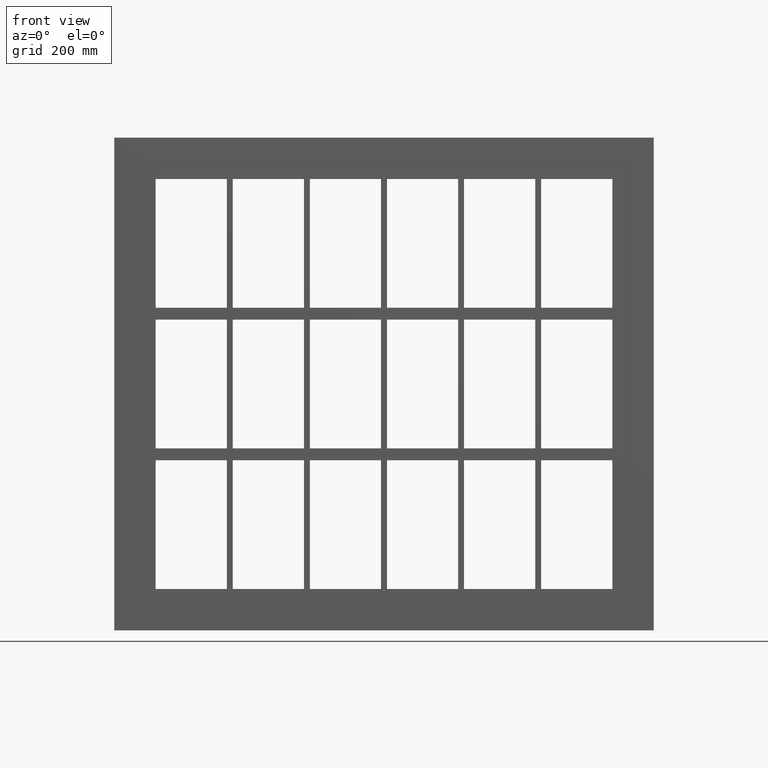
[diagram: clean part render]
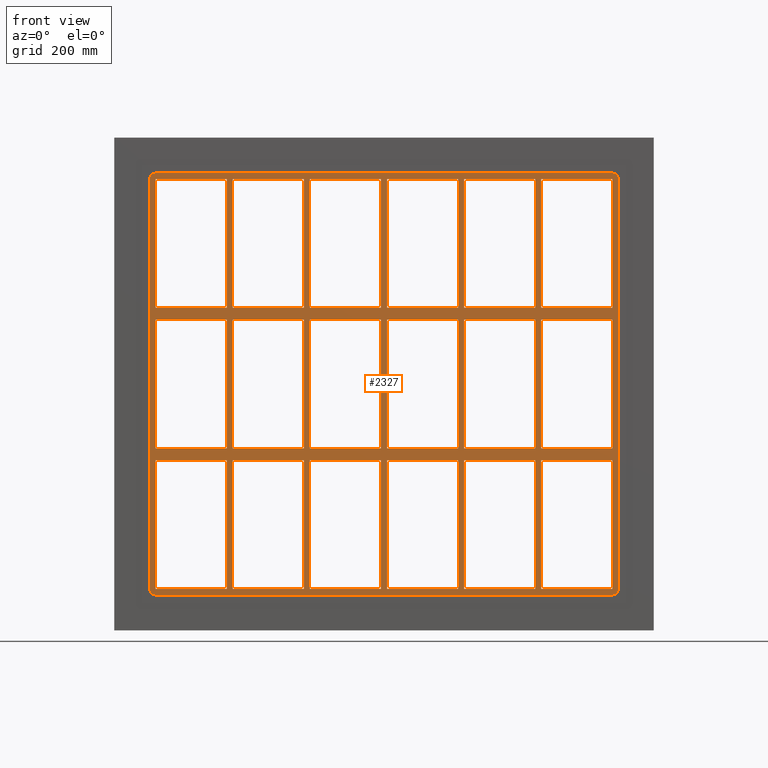
[diagram: same view with one face highlighted and labeled with its STEP entity id]
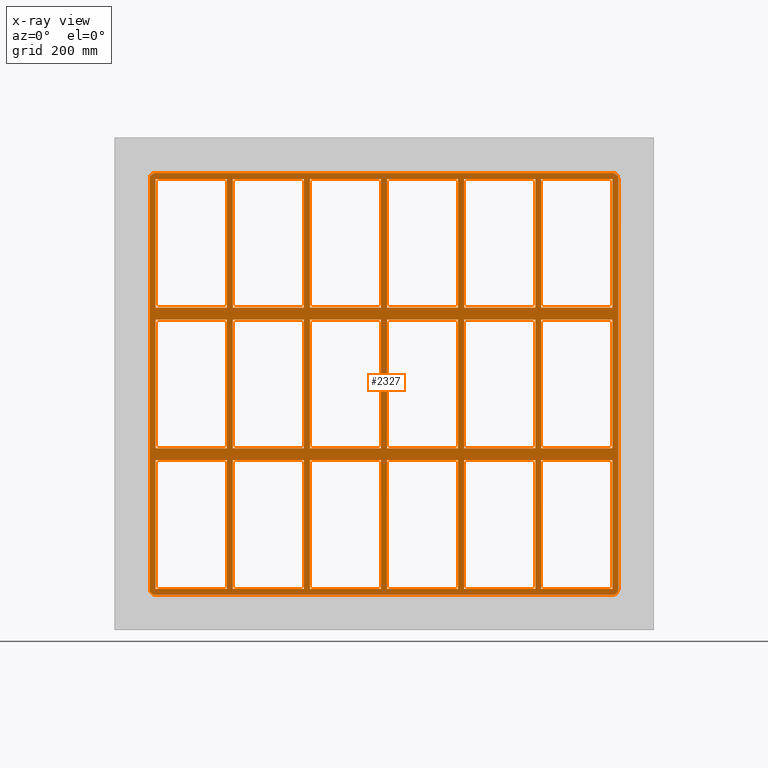
[diagram: x-ray of the same camera — body ghosted, the highlighted face saturated]
A machine part, front view. The second image highlights one B-rep face of the part: STEP entity #2327.
The next image is the same camera in x-ray: the body ghosted, the highlighted face saturated — about 0% of this face is hidden behind the body in this view.
In plain terms, the highlighted planar face has unit normal (0, 1, 0).
Its self-contained STEP definition (entity closure, byte-faithful):
#73=CARTESIAN_POINT('',(-266.00000000000142,-3.0,108.99999999999054));
#74=VERTEX_POINT('',#73);
#83=CARTESIAN_POINT('',(-386.49999999999972,-3.0,108.99999999999056));
#84=VERTEX_POINT('',#83);
#85=CARTESIAN_POINT('',(-266.00000000000136,-3.0,108.99999999999058));
#86=DIRECTION('',(-1.0,0.0,0.0));
#87=VECTOR('',#86,120.49999999999841);
#88=LINE('',#85,#87);
#89=EDGE_CURVE('',#74,#84,#88,.T.);
#113=CARTESIAN_POINT('',(-135.50000000000148,-3.0,108.99999999999059));
#114=VERTEX_POINT('',#113);
#123=CARTESIAN_POINT('',(-256.00000000000364,-3.0,108.99999999999056));
#124=VERTEX_POINT('',#123);
#125=CARTESIAN_POINT('',(-135.50000000000148,-3.0,108.99999999999058));
#126=DIRECTION('',(-1.0,0.0,0.0));
#127=VECTOR('',#126,120.50000000000216);
#128=LINE('',#125,#127);
#129=EDGE_CURVE('',#114,#124,#128,.T.);
#153=CARTESIAN_POINT('',(-5.000000000001421,-3.0,108.99999999999059));
#154=VERTEX_POINT('',#153);
#163=CARTESIAN_POINT('',(-125.50000000000367,-3.0,108.99999999999059));
#164=VERTEX_POINT('',#163);
#165=CARTESIAN_POINT('',(-5.000000000001421,-3.0,108.99999999999059));
#166=DIRECTION('',(-1.0,0.0,0.0));
#167=VECTOR('',#166,120.50000000000222);
#168=LINE('',#165,#167);
#169=EDGE_CURVE('',#154,#164,#168,.T.);
#193=CARTESIAN_POINT('',(125.49999999999866,-3.0,108.99999999999061));
#194=VERTEX_POINT('',#193);
#203=CARTESIAN_POINT('',(4.999999999996376,-3.0,108.99999999999061));
#204=VERTEX_POINT('',#203);
#205=CARTESIAN_POINT('',(125.49999999999864,-3.0,108.99999999999061));
#206=DIRECTION('',(-1.0,0.0,0.0));
#207=VECTOR('',#206,120.50000000000227);
#208=LINE('',#205,#207);
#209=EDGE_CURVE('',#194,#204,#208,.T.);
#235=CARTESIAN_POINT('',(265.99999999999642,-3.0,108.99999999999062));
#236=VERTEX_POINT('',#235);
#251=CARTESIAN_POINT('',(386.49999999999636,-3.0,108.99999999999062));
#252=VERTEX_POINT('',#251);
#259=CARTESIAN_POINT('',(386.49999999999636,-3.0,108.99999999999062));
#260=DIRECTION('',(-1.0,0.0,0.0));
#261=VECTOR('',#260,120.49999999999994);
#262=LINE('',#259,#261);
#263=EDGE_CURVE('',#252,#236,#262,.T.);
#273=CARTESIAN_POINT('',(255.99999999999866,-3.0,108.99999999999061));
#274=VERTEX_POINT('',#273);
#283=CARTESIAN_POINT('',(135.49999999999642,-3.0,108.99999999999061));
#284=VERTEX_POINT('',#283);
#285=CARTESIAN_POINT('',(255.99999999999866,-3.0,108.99999999999061));
#286=DIRECTION('',(-1.0,0.0,0.0));
#287=VECTOR('',#286,120.50000000000225);
#288=LINE('',#285,#287);
#289=EDGE_CURVE('',#274,#284,#288,.T.);
#315=CARTESIAN_POINT('',(-266.00000000000142,-3.0,128.99999999999991));
#316=VERTEX_POINT('',#315);
#331=CARTESIAN_POINT('',(-386.49999999999972,-3.0,128.99999999999994));
#332=VERTEX_POINT('',#331);
#339=CARTESIAN_POINT('',(-386.49999999999972,-3.0,128.99999999999994));
#340=DIRECTION('',(1.0,0.0,0.0));
#341=VECTOR('',#340,120.49999999999829);
#342=LINE('',#339,#341);
#343=EDGE_CURVE('',#332,#316,#342,.T.);
#353=CARTESIAN_POINT('',(265.99999999999648,-3.0,128.99999999999994));
#354=VERTEX_POINT('',#353);
#363=CARTESIAN_POINT('',(386.5,-3.0,128.99999999999994));
#364=VERTEX_POINT('',#363);
#365=CARTESIAN_POINT('',(265.99999999999642,-3.0,128.99999999999994));
#366=DIRECTION('',(1.0,0.0,0.0));
#367=VECTOR('',#366,120.50000000000352);
#368=LINE('',#365,#367);
#369=EDGE_CURVE('',#354,#364,#368,.T.);
#395=CARTESIAN_POINT('',(-135.50000000000139,-3.0,128.99999999999994));
#396=VERTEX_POINT('',#395);
#411=CARTESIAN_POINT('',(-256.00000000000364,-3.0,128.99999999999994));
#412=VERTEX_POINT('',#411);
#419=CARTESIAN_POINT('',(-256.00000000000364,-3.0,128.99999999999994));
#420=DIRECTION('',(1.0,0.0,0.0));
#421=VECTOR('',#420,120.50000000000222);
#422=LINE('',#419,#421);
#423=EDGE_CURVE('',#412,#396,#422,.T.);
#435=CARTESIAN_POINT('',(-5.000000000001421,-3.0,128.99999999999994));
#436=VERTEX_POINT('',#435);
#451=CARTESIAN_POINT('',(-125.50000000000364,-3.0,128.99999999999994));
#452=VERTEX_POINT('',#451);
#459=CARTESIAN_POINT('',(-125.50000000000364,-3.0,128.99999999999994));
#460=DIRECTION('',(1.0,0.0,0.0));
#461=VECTOR('',#460,120.50000000000222);
#462=LINE('',#459,#461);
#463=EDGE_CURVE('',#452,#436,#462,.T.);
#475=CARTESIAN_POINT('',(125.49999999999862,-3.0,128.99999999999994));
#476=VERTEX_POINT('',#475);
#491=CARTESIAN_POINT('',(4.999999999996376,-3.0,128.99999999999994));
#492=VERTEX_POINT('',#491);
#499=CARTESIAN_POINT('',(4.999999999996362,-3.0,128.99999999999994));
#500=DIRECTION('',(1.0,0.0,0.0));
#501=VECTOR('',#500,120.50000000000222);
#502=LINE('',#499,#501);
#503=EDGE_CURVE('',#492,#476,#502,.T.);
#515=CARTESIAN_POINT('',(255.99999999999875,-3.0,128.99999999999994));
#516=VERTEX_POINT('',#515);
#531=CARTESIAN_POINT('',(135.49999999999642,-3.0,128.99999999999994));
#532=VERTEX_POINT('',#531);
#539=CARTESIAN_POINT('',(135.49999999999642,-3.0,128.99999999999994));
#540=DIRECTION('',(1.0,0.0,0.0));
#541=VECTOR('',#540,120.50000000000227);
#542=LINE('',#539,#541);
#543=EDGE_CURVE('',#532,#516,#542,.T.);
#562=CARTESIAN_POINT('',(-386.50000000000006,-3.0,347.0));
#563=VERTEX_POINT('',#562);
#570=CARTESIAN_POINT('',(-386.50000000000006,-3.0,128.99999999999994));
#571=DIRECTION('',(0.0,0.0,1.0));
#572=VECTOR('',#571,218.00000000000006);
#573=LINE('',#570,#572);
#574=EDGE_CURVE('',#332,#563,#573,.T.);
#593=CARTESIAN_POINT('',(386.5,-3.0,-109.00000000000006));
#594=VERTEX_POINT('',#593);
#601=CARTESIAN_POINT('',(386.50000000000006,-3.0,108.99999999999061));
#602=DIRECTION('',(0.0,0.0,-1.0));
#603=VECTOR('',#602,217.99999999999068);
#604=LINE('',#601,#603);
#605=EDGE_CURVE('',#252,#594,#604,.T.);
#616=CARTESIAN_POINT('',(386.50000000000006,-3.0,347.0));
#617=VERTEX_POINT('',#616);
#618=CARTESIAN_POINT('',(386.50000000000006,-3.0,347.0));
#619=DIRECTION('',(0.0,0.0,-1.0));
#620=VECTOR('',#619,218.00000000000006);
#621=LINE('',#618,#620);
#622=EDGE_CURVE('',#617,#364,#621,.T.);
#647=CARTESIAN_POINT('',(255.99999999999864,-3.0,347.0));
#648=VERTEX_POINT('',#647);
#649=CARTESIAN_POINT('',(255.99999999999864,-3.0,128.99999999999994));
#650=DIRECTION('',(0.0,0.0,1.0));
#651=VECTOR('',#650,218.00000000000006);
#652=LINE('',#649,#651);
#653=EDGE_CURVE('',#516,#648,#652,.T.);
#686=CARTESIAN_POINT('',(265.99999999999642,-3.0,347.0));
#687=VERTEX_POINT('',#686);
#694=CARTESIAN_POINT('',(265.99999999999642,-3.0,347.0));
#695=DIRECTION('',(0.0,0.0,-1.0));
#696=VECTOR('',#695,218.00000000000009);
#697=LINE('',#694,#696);
#698=EDGE_CURVE('',#687,#354,#697,.T.);
#709=CARTESIAN_POINT('',(125.49999999999862,-3.0,347.0));
#710=VERTEX_POINT('',#709);
#711=CARTESIAN_POINT('',(125.49999999999865,-3.0,128.99999999999994));
#712=DIRECTION('',(0.0,0.0,1.0));
#713=VECTOR('',#712,218.00000000000006);
#714=LINE('',#711,#713);
#715=EDGE_CURVE('',#476,#710,#714,.T.);
#748=CARTESIAN_POINT('',(135.49999999999642,-3.0,347.0));
#749=VERTEX_POINT('',#748);
#756=CARTESIAN_POINT('',(135.49999999999642,-3.0,347.0));
#757=DIRECTION('',(0.0,0.0,-1.0));
#758=VECTOR('',#757,218.00000000000009);
#759=LINE('',#756,#758);
#760=EDGE_CURVE('',#749,#532,#759,.T.);
#771=CARTESIAN_POINT('',(-5.000000000001421,-3.0,347.0));
#772=VERTEX_POINT('',#771);
#773=CARTESIAN_POINT('',(-5.000000000001399,-3.0,128.99999999999994));
#774=DIRECTION('',(0.0,0.0,1.0));
#775=VECTOR('',#774,218.00000000000006);
#776=LINE('',#773,#775);
#777=EDGE_CURVE('',#436,#772,#776,.T.);
#810=CARTESIAN_POINT('',(4.999999999996376,-3.0,347.0));
#811=VERTEX_POINT('',#810);
#818=CARTESIAN_POINT('',(4.999999999996376,-3.0,347.0));
#819=DIRECTION('',(0.0,0.0,-1.0));
#820=VECTOR('',#819,218.00000000000009);
#821=LINE('',#818,#820);
#822=EDGE_CURVE('',#811,#492,#821,.T.);
#833=CARTESIAN_POINT('',(-135.50000000000142,-3.0,347.0));
#834=VERTEX_POINT('',#833);
#835=CARTESIAN_POINT('',(-135.50000000000142,-3.0,128.99999999999994));
#836=DIRECTION('',(0.0,0.0,1.0));
#837=VECTOR('',#836,218.00000000000006);
#838=LINE('',#835,#837);
#839=EDGE_CURVE('',#396,#834,#838,.T.);
#872=CARTESIAN_POINT('',(-125.50000000000364,-3.0,347.0));
#873=VERTEX_POINT('',#872);
#880=CARTESIAN_POINT('',(-125.50000000000364,-3.0,347.0));
#881=DIRECTION('',(0.0,0.0,-1.0));
#882=VECTOR('',#881,218.00000000000009);
#883=LINE('',#880,#882);
#884=EDGE_CURVE('',#873,#452,#883,.T.);
#895=CARTESIAN_POINT('',(-266.00000000000142,-3.0,347.0));
#896=VERTEX_POINT('',#895);
#897=CARTESIAN_POINT('',(-266.00000000000142,-3.0,128.99999999999994));
#898=DIRECTION('',(0.0,0.0,1.0));
#899=VECTOR('',#898,218.00000000000006);
#900=LINE('',#897,#899);
#901=EDGE_CURVE('',#316,#896,#900,.T.);
#934=CARTESIAN_POINT('',(-266.00000000000136,-3.0,-109.00000000000006));
#935=VERTEX_POINT('',#934);
#942=CARTESIAN_POINT('',(-266.00000000000136,-3.0,-109.00000000000003));
#943=DIRECTION('',(0.0,0.0,1.0));
#944=VECTOR('',#943,217.99999999999059);
#945=LINE('',#942,#944);
#946=EDGE_CURVE('',#935,#74,#945,.T.);
#965=CARTESIAN_POINT('',(-256.00000000000364,-3.0,347.0));
#966=VERTEX_POINT('',#965);
#973=CARTESIAN_POINT('',(-256.00000000000364,-3.0,347.0));
#974=DIRECTION('',(0.0,0.0,-1.0));
#975=VECTOR('',#974,218.00000000000009);
#976=LINE('',#973,#975);
#977=EDGE_CURVE('',#966,#412,#976,.T.);
#1471=CARTESIAN_POINT('',(255.99999999999866,-3.0,-109.00000000000006));
#1472=VERTEX_POINT('',#1471);
#1479=CARTESIAN_POINT('',(255.99999999999866,-3.0,-109.00000000000003));
#1480=DIRECTION('',(0.0,0.0,1.0));
#1481=VECTOR('',#1480,217.99999999999065);
#1482=LINE('',#1479,#1481);
#1483=EDGE_CURVE('',#1472,#274,#1482,.T.);
#1493=CARTESIAN_POINT('',(255.99999999999866,-3.0,-129.00000000000938));
#1494=VERTEX_POINT('',#1493);
#1502=CARTESIAN_POINT('',(255.99999999999869,-3.0,-347.0));
#1503=VERTEX_POINT('',#1502);
#1510=CARTESIAN_POINT('',(255.99999999999869,-3.0,-347.0));
#1511=DIRECTION('',(0.0,0.0,1.0));
#1512=VECTOR('',#1511,217.99999999999068);
#1513=LINE('',#1510,#1512);
#1514=EDGE_CURVE('',#1503,#1494,#1513,.T.);
#1525=CARTESIAN_POINT('',(265.99999999999642,-3.0,-109.00000000000006));
#1526=VERTEX_POINT('',#1525);
#1527=CARTESIAN_POINT('',(265.99999999999642,-3.0,108.99999999999056));
#1528=DIRECTION('',(0.0,0.0,-1.0));
#1529=VECTOR('',#1528,217.99999999999068);
#1530=LINE('',#1527,#1529);
#1531=EDGE_CURVE('',#236,#1526,#1530,.T.);
#1548=CARTESIAN_POINT('',(265.99999999999642,-3.0,-129.00000000000938));
#1549=VERTEX_POINT('',#1548);
#1556=CARTESIAN_POINT('',(265.99999999999642,-3.0,-346.99999999998408));
#1557=VERTEX_POINT('',#1556);
#1558=CARTESIAN_POINT('',(265.99999999999642,-3.0,-129.00000000000938));
#1559=DIRECTION('',(0.0,0.0,-1.0));
#1560=VECTOR('',#1559,217.9999999999747);
#1561=LINE('',#1558,#1560);
#1562=EDGE_CURVE('',#1549,#1557,#1561,.T.);
#1581=CARTESIAN_POINT('',(125.49999999999868,-3.0,-109.00000000000006));
#1582=VERTEX_POINT('',#1581);
#1589=CARTESIAN_POINT('',(125.49999999999866,-3.0,-109.00000000000003));
#1590=DIRECTION('',(0.0,0.0,1.0));
#1591=VECTOR('',#1590,217.99999999999065);
#1592=LINE('',#1589,#1591);
#1593=EDGE_CURVE('',#1582,#194,#1592,.T.);
#1603=CARTESIAN_POINT('',(125.49999999999868,-3.0,-129.00000000000941));
#1604=VERTEX_POINT('',#1603);
#1612=CARTESIAN_POINT('',(125.49999999999869,-3.0,-347.0));
#1613=VERTEX_POINT('',#1612);
#1620=CARTESIAN_POINT('',(125.49999999999869,-3.0,-347.0));
#1621=DIRECTION('',(0.0,0.0,1.0));
#1622=VECTOR('',#1621,217.99999999999062);
#1623=LINE('',#1620,#1622);
#1624=EDGE_CURVE('',#1613,#1604,#1623,.T.);
#1635=CARTESIAN_POINT('',(135.49999999999642,-3.0,-109.00000000000006));
#1636=VERTEX_POINT('',#1635);
#1637=CARTESIAN_POINT('',(135.49999999999642,-3.0,108.99999999999056));
#1638=DIRECTION('',(0.0,0.0,-1.0));
#1639=VECTOR('',#1638,217.99999999999068);
#1640=LINE('',#1637,#1639);
#1641=EDGE_CURVE('',#284,#1636,#1640,.T.);
#1658=CARTESIAN_POINT('',(135.49999999999642,-3.0,-129.00000000000938));
#1659=VERTEX_POINT('',#1658);
#1666=CARTESIAN_POINT('',(135.49999999999642,-3.0,-346.99999999998408));
#1667=VERTEX_POINT('',#1666);
#1668=CARTESIAN_POINT('',(135.49999999999642,-3.0,-129.00000000000938));
#1669=DIRECTION('',(0.0,0.0,-1.0));
#1670=VECTOR('',#1669,217.9999999999747);
#1671=LINE('',#1668,#1670);
#1672=EDGE_CURVE('',#1659,#1667,#1671,.T.);
#1691=CARTESIAN_POINT('',(-5.000000000001375,-3.0,-109.00000000000006));
#1692=VERTEX_POINT('',#1691);
#1699=CARTESIAN_POINT('',(-5.000000000001374,-3.0,-109.00000000000003));
#1700=DIRECTION('',(0.0,0.0,1.0));
#1701=VECTOR('',#1700,217.99999999999065);
#1702=LINE('',#1699,#1701);
#1703=EDGE_CURVE('',#1692,#154,#1702,.T.);
#1713=CARTESIAN_POINT('',(-5.000000000001372,-3.0,-129.00000000000941));
#1714=VERTEX_POINT('',#1713);
#1722=CARTESIAN_POINT('',(-5.00000000000135,-3.0,-347.0));
#1723=VERTEX_POINT('',#1722);
#1730=CARTESIAN_POINT('',(-5.00000000000135,-3.0,-347.0));
#1731=DIRECTION('',(0.0,0.0,1.0));
#1732=VECTOR('',#1731,217.99999999999062);
#1733=LINE('',#1730,#1732);
#1734=EDGE_CURVE('',#1723,#1714,#1733,.T.);
#1745=CARTESIAN_POINT('',(4.999999999996376,-3.0,-109.00000000000006));
#1746=VERTEX_POINT('',#1745);
#1747=CARTESIAN_POINT('',(4.999999999996376,-3.0,108.99999999999056));
#1748=DIRECTION('',(0.0,0.0,-1.0));
#1749=VECTOR('',#1748,217.99999999999068);
#1750=LINE('',#1747,#1749);
#1751=EDGE_CURVE('',#204,#1746,#1750,.T.);
#1768=CARTESIAN_POINT('',(4.999999999996376,-3.0,-129.00000000000938));
#1769=VERTEX_POINT('',#1768);
#1776=CARTESIAN_POINT('',(4.999999999996376,-3.0,-346.99999999998408));
#1777=VERTEX_POINT('',#1776);
#1778=CARTESIAN_POINT('',(4.999999999996376,-3.0,-129.00000000000938));
#1779=DIRECTION('',(0.0,0.0,-1.0));
#1780=VECTOR('',#1779,217.9999999999747);
#1781=LINE('',#1778,#1780);
#1782=EDGE_CURVE('',#1769,#1777,#1781,.T.);
#1801=CARTESIAN_POINT('',(-135.50000000000136,-3.0,-109.00000000000006));
#1802=VERTEX_POINT('',#1801);
#1809=CARTESIAN_POINT('',(-135.50000000000139,-3.0,-109.00000000000003));
#1810=DIRECTION('',(0.0,0.0,1.0));
#1811=VECTOR('',#1810,217.99999999999065);
#1812=LINE('',#1809,#1811);
#1813=EDGE_CURVE('',#1802,#114,#1812,.T.);
#1823=CARTESIAN_POINT('',(-135.50000000000136,-3.0,-129.00000000000941));
#1824=VERTEX_POINT('',#1823);
#1832=CARTESIAN_POINT('',(-135.50000000000136,-3.0,-347.0));
#1833=VERTEX_POINT('',#1832);
#1840=CARTESIAN_POINT('',(-135.50000000000136,-3.0,-347.0));
#1841=DIRECTION('',(0.0,0.0,1.0));
#1842=VECTOR('',#1841,217.99999999999062);
#1843=LINE('',#1840,#1842);
#1844=EDGE_CURVE('',#1833,#1824,#1843,.T.);
#1855=CARTESIAN_POINT('',(-125.50000000000364,-3.0,-109.00000000000006));
#1856=VERTEX_POINT('',#1855);
#1857=CARTESIAN_POINT('',(-125.50000000000364,-3.0,108.99999999999056));
#1858=DIRECTION('',(0.0,0.0,-1.0));
#1859=VECTOR('',#1858,217.99999999999068);
#1860=LINE('',#1857,#1859);
#1861=EDGE_CURVE('',#164,#1856,#1860,.T.);
#1878=CARTESIAN_POINT('',(-125.50000000000364,-3.0,-129.00000000000938));
#1879=VERTEX_POINT('',#1878);
#1886=CARTESIAN_POINT('',(-125.50000000000364,-3.0,-346.99999999998408));
#1887=VERTEX_POINT('',#1886);
#1888=CARTESIAN_POINT('',(-125.50000000000364,-3.0,-129.00000000000938));
#1889=DIRECTION('',(0.0,0.0,-1.0));
#1890=VECTOR('',#1889,217.9999999999747);
#1891=LINE('',#1888,#1890);
#1892=EDGE_CURVE('',#1879,#1887,#1891,.T.);
#1911=CARTESIAN_POINT('',(-256.00000000000364,-3.0,-346.99999999998408));
#1912=VERTEX_POINT('',#1911);
#1919=CARTESIAN_POINT('',(-135.50000000000139,-3.0,-347.0));
#1920=DIRECTION('',(-1.0,0.0,0.0));
#1921=VECTOR('',#1920,120.50000000000225);
#1922=LINE('',#1919,#1921);
#1923=EDGE_CURVE('',#1833,#1912,#1922,.T.);
#1936=CARTESIAN_POINT('',(-5.000000000001336,-3.0,-347.0));
#1937=DIRECTION('',(-1.0,0.0,0.0));
#1938=VECTOR('',#1937,120.50000000000227);
#1939=LINE('',#1936,#1938);
#1940=EDGE_CURVE('',#1723,#1887,#1939,.T.);
#1953=CARTESIAN_POINT('',(125.49999999999869,-3.0,-347.0));
#1954=DIRECTION('',(-1.0,0.0,0.0));
#1955=VECTOR('',#1954,120.5000000000023);
#1956=LINE('',#1953,#1955);
#1957=EDGE_CURVE('',#1613,#1777,#1956,.T.);
#1970=CARTESIAN_POINT('',(255.99999999999869,-3.0,-347.0));
#1971=DIRECTION('',(-1.0,0.0,0.0));
#1972=VECTOR('',#1971,120.50000000000227);
#1973=LINE('',#1970,#1972);
#1974=EDGE_CURVE('',#1503,#1667,#1973,.T.);
#1985=CARTESIAN_POINT('',(386.50000000000006,-3.0,-347.0));
#1986=VERTEX_POINT('',#1985);
#1987=CARTESIAN_POINT('',(386.50000000000006,-3.0,-347.0));
#1988=DIRECTION('',(-1.0,0.0,0.0));
#1989=VECTOR('',#1988,120.50000000000364);
#1990=LINE('',#1987,#1989);
#1991=EDGE_CURVE('',#1986,#1557,#1990,.T.);
#2003=CARTESIAN_POINT('',(0.0,-3.0,0.0));
#2004=DIRECTION('',(0.0,1.0,0.0));
#2005=DIRECTION('',(0.0,0.0,1.0));
#2006=AXIS2_PLACEMENT_3D('',#2003,#2004,#2005);
#2007=PLANE('',#2006);
#2008=CARTESIAN_POINT('',(396.50000000000006,-3.0,-347.0));
#2009=VERTEX_POINT('',#2008);
#2010=CARTESIAN_POINT('',(386.50000000000006,-3.0,-357.0));
#2011=VERTEX_POINT('',#2010);
#2012=CARTESIAN_POINT('',(386.50000000000006,-3.0,-347.0));
#2013=DIRECTION('',(0.0,1.0,0.0));
#2014=DIRECTION('',(0.707106781186547,0.0,-0.707106781186547));
#2015=AXIS2_PLACEMENT_3D('',#2012,#2013,#2014);
#2016=CIRCLE('',#2015,9.999999999999998);
#2017=EDGE_CURVE('',#2009,#2011,#2016,.T.);
#2018=ORIENTED_EDGE('',*,*,#2017,.F.);
#2019=CARTESIAN_POINT('',(396.50000000000006,-3.0,347.0));
#2020=VERTEX_POINT('',#2019);
#2021=CARTESIAN_POINT('',(396.50000000000006,-3.0,-347.0));
#2022=DIRECTION('',(0.0,0.0,1.0));
#2023=VECTOR('',#2022,694.0);
#2024=LINE('',#2021,#2023);
#2025=EDGE_CURVE('',#2009,#2020,#2024,.T.);
#2026=ORIENTED_EDGE('',*,*,#2025,.T.);
#2027=CARTESIAN_POINT('',(386.50000000000006,-3.0,357.0));
#2028=VERTEX_POINT('',#2027);
#2029=CARTESIAN_POINT('',(386.50000000000006,-3.0,347.0));
#2030=DIRECTION('',(0.0,1.0,0.0));
#2031=DIRECTION('',(0.707106781186547,0.0,0.707106781186547));
#2032=AXIS2_PLACEMENT_3D('',#2029,#2030,#2031);
#2033=CIRCLE('',#2032,9.999999999999998);
#2034=EDGE_CURVE('',#2028,#2020,#2033,.T.);
#2035=ORIENTED_EDGE('',*,*,#2034,.F.);
#2036=CARTESIAN_POINT('',(-386.50000000000006,-3.0,357.0));
#2037=VERTEX_POINT('',#2036);
#2038=CARTESIAN_POINT('',(386.50000000000006,-3.0,357.0));
#2039=DIRECTION('',(-1.0,0.0,0.0));
#2040=VECTOR('',#2039,773.00000000000011);
#2041=LINE('',#2038,#2040);
#2042=EDGE_CURVE('',#2028,#2037,#2041,.T.);
#2043=ORIENTED_EDGE('',*,*,#2042,.T.);
#2044=CARTESIAN_POINT('',(-396.50000000000006,-3.0,347.0));
#2045=VERTEX_POINT('',#2044);
#2046=CARTESIAN_POINT('',(-386.50000000000006,-3.0,347.0));
#2047=DIRECTION('',(0.0,1.0,0.0));
#2048=DIRECTION('',(-0.707106781186547,0.0,0.707106781186547));
#2049=AXIS2_PLACEMENT_3D('',#2046,#2047,#2048);
#2050=CIRCLE('',#2049,9.999999999999998);
#2051=EDGE_CURVE('',#2045,#2037,#2050,.T.);
#2052=ORIENTED_EDGE('',*,*,#2051,.F.);
#2053=CARTESIAN_POINT('',(-396.50000000000006,-3.0,-347.0));
#2054=VERTEX_POINT('',#2053);
#2055=CARTESIAN_POINT('',(-396.50000000000006,-3.0,347.0));
#2056=DIRECTION('',(0.0,0.0,-1.0));
#2057=VECTOR('',#2056,694.0);
#2058=LINE('',#2055,#2057);
#2059=EDGE_CURVE('',#2045,#2054,#2058,.T.);
#2060=ORIENTED_EDGE('',*,*,#2059,.T.);
#2061=CARTESIAN_POINT('',(-386.50000000000006,-3.0,-357.0));
#2062=VERTEX_POINT('',#2061);
#2063=CARTESIAN_POINT('',(-386.50000000000006,-3.0,-347.0));
#2064=DIRECTION('',(0.0,1.0,0.0));
#2065=DIRECTION('',(-0.707106781186547,0.0,-0.707106781186547));
#2066=AXIS2_PLACEMENT_3D('',#2063,#2064,#2065);
#2067=CIRCLE('',#2066,9.999999999999998);
#2068=EDGE_CURVE('',#2062,#2054,#2067,.T.);
#2069=ORIENTED_EDGE('',*,*,#2068,.F.);
#2070=CARTESIAN_POINT('',(-386.50000000000006,-3.0,-357.0));
#2071=DIRECTION('',(1.0,0.0,0.0));
#2072=VECTOR('',#2071,773.00000000000011);
#2073=LINE('',#2070,#2072);
#2074=EDGE_CURVE('',#2062,#2011,#2073,.T.);
#2075=ORIENTED_EDGE('',*,*,#2074,.T.);
#2076=EDGE_LOOP('',(#2018,#2026,#2035,#2043,#2052,#2060,#2069,#2075));
#2077=FACE_OUTER_BOUND('',#2076,.T.);
#2078=ORIENTED_EDGE('',*,*,#574,.T.);
#2079=CARTESIAN_POINT('',(-386.50000000000006,-3.0,347.0));
#2080=DIRECTION('',(1.0,0.0,0.0));
#2081=VECTOR('',#2080,120.49999999999864);
#2082=LINE('',#2079,#2081);
#2083=EDGE_CURVE('',#563,#896,#2082,.T.);
#2084=ORIENTED_EDGE('',*,*,#2083,.T.);
#2085=ORIENTED_EDGE('',*,*,#901,.F.);
#2086=ORIENTED_EDGE('',*,*,#343,.F.);
#2087=EDGE_LOOP('',(#2078,#2084,#2085,#2086));
#2088=FACE_BOUND('',#2087,.T.);
#2089=ORIENTED_EDGE('',*,*,#605,.T.);
#2090=CARTESIAN_POINT('',(265.99999999999642,-3.0,-109.00000000000006));
#2091=DIRECTION('',(1.0,0.0,0.0));
#2092=VECTOR('',#2091,120.50000000000352);
#2093=LINE('',#2090,#2092);
#2094=EDGE_CURVE('',#1526,#594,#2093,.T.);
#2095=ORIENTED_EDGE('',*,*,#2094,.F.);
#2096=ORIENTED_EDGE('',*,*,#1531,.F.);
#2097=ORIENTED_EDGE('',*,*,#263,.F.);
#2098=EDGE_LOOP('',(#2089,#2095,#2096,#2097));
#2099=FACE_BOUND('',#2098,.T.);
#2100=ORIENTED_EDGE('',*,*,#1483,.F.);
#2101=CARTESIAN_POINT('',(135.49999999999642,-3.0,-109.00000000000006));
#2102=DIRECTION('',(1.0,0.0,0.0));
#2103=VECTOR('',#2102,120.50000000000216);
#2104=LINE('',#2101,#2103);
#2105=EDGE_CURVE('',#1636,#1472,#2104,.T.);
#2106=ORIENTED_EDGE('',*,*,#2105,.F.);
#2107=ORIENTED_EDGE('',*,*,#1641,.F.);
#2108=ORIENTED_EDGE('',*,*,#289,.F.);
#2109=EDGE_LOOP('',(#2100,#2106,#2107,#2108));
#2110=FACE_BOUND('',#2109,.T.);
#2111=ORIENTED_EDGE('',*,*,#1593,.F.);
#2112=CARTESIAN_POINT('',(4.999999999996362,-3.0,-109.00000000000006));
#2113=DIRECTION('',(1.0,0.0,0.0));
#2114=VECTOR('',#2113,120.50000000000233);
#2115=LINE('',#2112,#2114);
#2116=EDGE_CURVE('',#1746,#1582,#2115,.T.);
#2117=ORIENTED_EDGE('',*,*,#2116,.F.);
#2118=ORIENTED_EDGE('',*,*,#1751,.F.);
#2119=ORIENTED_EDGE('',*,*,#209,.F.);
#2120=EDGE_LOOP('',(#2111,#2117,#2118,#2119));
#2121=FACE_BOUND('',#2120,.T.);
#2122=ORIENTED_EDGE('',*,*,#1703,.F.);
#2123=CARTESIAN_POINT('',(-125.50000000000364,-3.0,-109.00000000000006));
#2124=DIRECTION('',(1.0,0.0,0.0));
#2125=VECTOR('',#2124,120.50000000000227);
#2126=LINE('',#2123,#2125);
#2127=EDGE_CURVE('',#1856,#1692,#2126,.T.);
#2128=ORIENTED_EDGE('',*,*,#2127,.F.);
#2129=ORIENTED_EDGE('',*,*,#1861,.F.);
#2130=ORIENTED_EDGE('',*,*,#169,.F.);
#2131=EDGE_LOOP('',(#2122,#2128,#2129,#2130));
#2132=FACE_BOUND('',#2131,.T.);
#2133=ORIENTED_EDGE('',*,*,#1813,.F.);
#2134=CARTESIAN_POINT('',(-256.00000000000364,-3.0,-109.00000000000006));
#2135=VERTEX_POINT('',#2134);
#2136=CARTESIAN_POINT('',(-256.00000000000364,-3.0,-109.00000000000006));
#2137=DIRECTION('',(1.0,0.0,0.0));
#2138=VECTOR('',#2137,120.50000000000222);
#2139=LINE('',#2136,#2138);
#2140=EDGE_CURVE('',#2135,#1802,#2139,.T.);
#2141=ORIENTED_EDGE('',*,*,#2140,.F.);
#2142=CARTESIAN_POINT('',(-256.00000000000364,-3.0,108.99999999999054));
#2143=DIRECTION('',(0.0,0.0,-1.0));
#2144=VECTOR('',#2143,217.99999999999065);
#2145=LINE('',#2142,#2144);
#2146=EDGE_CURVE('',#124,#2135,#2145,.T.);
#2147=ORIENTED_EDGE('',*,*,#2146,.F.);
#2148=ORIENTED_EDGE('',*,*,#129,.F.);
#2149=EDGE_LOOP('',(#2133,#2141,#2147,#2148));
#2150=FACE_BOUND('',#2149,.T.);
#2151=ORIENTED_EDGE('',*,*,#543,.F.);
#2152=ORIENTED_EDGE('',*,*,#760,.F.);
#2153=CARTESIAN_POINT('',(135.49999999999645,-3.0,347.0));
#2154=DIRECTION('',(1.0,0.0,0.0));
#2155=VECTOR('',#2154,120.50000000000222);
#2156=LINE('',#2153,#2155);
#2157=EDGE_CURVE('',#749,#648,#2156,.T.);
#2158=ORIENTED_EDGE('',*,*,#2157,.T.);
#2159=ORIENTED_EDGE('',*,*,#653,.F.);
#2160=EDGE_LOOP('',(#2151,#2152,#2158,#2159));
#2161=FACE_BOUND('',#2160,.T.);
#2162=ORIENTED_EDGE('',*,*,#503,.F.);
#2163=ORIENTED_EDGE('',*,*,#822,.F.);
#2164=CARTESIAN_POINT('',(4.99999999999639,-3.0,347.0));
#2165=DIRECTION('',(1.0,0.0,0.0));
#2166=VECTOR('',#2165,120.50000000000222);
#2167=LINE('',#2164,#2166);
#2168=EDGE_CURVE('',#811,#710,#2167,.T.);
#2169=ORIENTED_EDGE('',*,*,#2168,.T.);
#2170=ORIENTED_EDGE('',*,*,#715,.F.);
#2171=EDGE_LOOP('',(#2162,#2163,#2169,#2170));
#2172=FACE_BOUND('',#2171,.T.);
#2173=ORIENTED_EDGE('',*,*,#463,.F.);
#2174=ORIENTED_EDGE('',*,*,#884,.F.);
#2175=CARTESIAN_POINT('',(-125.50000000000364,-3.0,347.0));
#2176=DIRECTION('',(1.0,0.0,0.0));
#2177=VECTOR('',#2176,120.50000000000222);
#2178=LINE('',#2175,#2177);
#2179=EDGE_CURVE('',#873,#772,#2178,.T.);
#2180=ORIENTED_EDGE('',*,*,#2179,.T.);
#2181=ORIENTED_EDGE('',*,*,#777,.F.);
#2182=EDGE_LOOP('',(#2173,#2174,#2180,#2181));
#2183=FACE_BOUND('',#2182,.T.);
#2184=ORIENTED_EDGE('',*,*,#423,.F.);
#2185=ORIENTED_EDGE('',*,*,#977,.F.);
#2186=CARTESIAN_POINT('',(-256.00000000000364,-3.0,347.0));
#2187=DIRECTION('',(1.0,0.0,0.0));
#2188=VECTOR('',#2187,120.50000000000222);
#2189=LINE('',#2186,#2188);
#2190=EDGE_CURVE('',#966,#834,#2189,.T.);
#2191=ORIENTED_EDGE('',*,*,#2190,.T.);
#2192=ORIENTED_EDGE('',*,*,#839,.F.);
#2193=EDGE_LOOP('',(#2184,#2185,#2191,#2192));
#2194=FACE_BOUND('',#2193,.T.);
#2195=ORIENTED_EDGE('',*,*,#89,.F.);
#2196=ORIENTED_EDGE('',*,*,#946,.F.);
#2197=CARTESIAN_POINT('',(-386.49999999999972,-3.0,-109.00000000000006));
#2198=VERTEX_POINT('',#2197);
#2199=CARTESIAN_POINT('',(-386.49999999999972,-3.0,-109.00000000000006));
#2200=DIRECTION('',(1.0,0.0,0.0));
#2201=VECTOR('',#2200,120.49999999999835);
#2202=LINE('',#2199,#2201);
#2203=EDGE_CURVE('',#2198,#935,#2202,.T.);
#2204=ORIENTED_EDGE('',*,*,#2203,.F.);
#2205=CARTESIAN_POINT('',(-386.50000000000006,-3.0,-109.00000000000004));
#2206=DIRECTION('',(0.0,0.0,1.0));
#2207=VECTOR('',#2206,217.99999999999062);
#2208=LINE('',#2205,#2207);
#2209=EDGE_CURVE('',#2198,#84,#2208,.T.);
#2210=ORIENTED_EDGE('',*,*,#2209,.T.);
#2211=EDGE_LOOP('',(#2195,#2196,#2204,#2210));
#2212=FACE_BOUND('',#2211,.T.);
#2213=ORIENTED_EDGE('',*,*,#369,.F.);
#2214=ORIENTED_EDGE('',*,*,#698,.F.);
#2215=CARTESIAN_POINT('',(265.99999999999636,-3.0,347.0));
#2216=DIRECTION('',(1.0,0.0,0.0));
#2217=VECTOR('',#2216,120.50000000000375);
#2218=LINE('',#2215,#2217);
#2219=EDGE_CURVE('',#687,#617,#2218,.T.);
#2220=ORIENTED_EDGE('',*,*,#2219,.T.);
#2221=ORIENTED_EDGE('',*,*,#622,.T.);
#2222=EDGE_LOOP('',(#2213,#2214,#2220,#2221));
#2223=FACE_BOUND('',#2222,.T.);
#2224=ORIENTED_EDGE('',*,*,#1974,.T.);
#2225=ORIENTED_EDGE('',*,*,#1672,.F.);
#2226=CARTESIAN_POINT('',(255.99999999999866,-3.0,-129.00000000000938));
#2227=DIRECTION('',(-1.0,0.0,0.0));
#2228=VECTOR('',#2227,120.50000000000225);
#2229=LINE('',#2226,#2228);
#2230=EDGE_CURVE('',#1494,#1659,#2229,.T.);
#2231=ORIENTED_EDGE('',*,*,#2230,.F.);
#2232=ORIENTED_EDGE('',*,*,#1514,.F.);
#2233=EDGE_LOOP('',(#2224,#2225,#2231,#2232));
#2234=FACE_BOUND('',#2233,.T.);
#2235=ORIENTED_EDGE('',*,*,#1957,.T.);
#2236=ORIENTED_EDGE('',*,*,#1782,.F.);
#2237=CARTESIAN_POINT('',(125.49999999999869,-3.0,-129.00000000000941));
#2238=DIRECTION('',(-1.0,0.0,0.0));
#2239=VECTOR('',#2238,120.50000000000233);
#2240=LINE('',#2237,#2239);
#2241=EDGE_CURVE('',#1604,#1769,#2240,.T.);
#2242=ORIENTED_EDGE('',*,*,#2241,.F.);
#2243=ORIENTED_EDGE('',*,*,#1624,.F.);
#2244=EDGE_LOOP('',(#2235,#2236,#2242,#2243));
#2245=FACE_BOUND('',#2244,.T.);
#2246=ORIENTED_EDGE('',*,*,#1940,.T.);
#2247=ORIENTED_EDGE('',*,*,#1892,.F.);
#2248=CARTESIAN_POINT('',(-5.000000000001364,-3.0,-129.00000000000941));
#2249=DIRECTION('',(-1.0,0.0,0.0));
#2250=VECTOR('',#2249,120.50000000000227);
#2251=LINE('',#2248,#2250);
#2252=EDGE_CURVE('',#1714,#1879,#2251,.T.);
#2253=ORIENTED_EDGE('',*,*,#2252,.F.);
#2254=ORIENTED_EDGE('',*,*,#1734,.F.);
#2255=EDGE_LOOP('',(#2246,#2247,#2253,#2254));
#2256=FACE_BOUND('',#2255,.T.);
#2257=ORIENTED_EDGE('',*,*,#1923,.T.);
#2258=CARTESIAN_POINT('',(-256.00000000000364,-3.0,-129.00000000000941));
#2259=VERTEX_POINT('',#2258);
#2260=CARTESIAN_POINT('',(-256.00000000000364,-3.0,-129.00000000000944));
#2261=DIRECTION('',(0.0,0.0,-1.0));
#2262=VECTOR('',#2261,217.99999999997465);
#2263=LINE('',#2260,#2262);
#2264=EDGE_CURVE('',#2259,#1912,#2263,.T.);
#2265=ORIENTED_EDGE('',*,*,#2264,.F.);
#2266=CARTESIAN_POINT('',(-135.50000000000136,-3.0,-129.00000000000941));
#2267=DIRECTION('',(-1.0,0.0,0.0));
#2268=VECTOR('',#2267,120.50000000000227);
#2269=LINE('',#2266,#2268);
#2270=EDGE_CURVE('',#1824,#2259,#2269,.T.);
#2271=ORIENTED_EDGE('',*,*,#2270,.F.);
#2272=ORIENTED_EDGE('',*,*,#1844,.F.);
#2273=EDGE_LOOP('',(#2257,#2265,#2271,#2272));
#2274=FACE_BOUND('',#2273,.T.);
#2275=ORIENTED_EDGE('',*,*,#1562,.F.);
#2276=CARTESIAN_POINT('',(386.49999999999636,-3.0,-129.00000000000938));
#2277=VERTEX_POINT('',#2276);
#2278=CARTESIAN_POINT('',(386.49999999999636,-3.0,-129.00000000000938));
#2279=DIRECTION('',(-1.0,0.0,0.0));
#2280=VECTOR('',#2279,120.49999999999994);
#2281=LINE('',#2278,#2280);
#2282=EDGE_CURVE('',#2277,#1549,#2281,.T.);
#2283=ORIENTED_EDGE('',*,*,#2282,.F.);
#2284=CARTESIAN_POINT('',(386.50000000000006,-3.0,-129.00000000000938));
#2285=DIRECTION('',(0.0,0.0,-1.0));
#2286=VECTOR('',#2285,217.99999999999062);
#2287=LINE('',#2284,#2286);
#2288=EDGE_CURVE('',#2277,#1986,#2287,.T.);
#2289=ORIENTED_EDGE('',*,*,#2288,.T.);
#2290=ORIENTED_EDGE('',*,*,#1991,.T.);
#2291=EDGE_LOOP('',(#2275,#2283,#2289,#2290));
#2292=FACE_BOUND('',#2291,.T.);
#2293=CARTESIAN_POINT('',(-266.00000000000136,-3.0,-129.00000000000944));
#2294=VERTEX_POINT('',#2293);
#2295=CARTESIAN_POINT('',(-386.49999999999972,-3.0,-129.00000000000944));
#2296=VERTEX_POINT('',#2295);
#2297=CARTESIAN_POINT('',(-266.00000000000136,-3.0,-129.00000000000944));
#2298=DIRECTION('',(-1.0,0.0,0.0));
#2299=VECTOR('',#2298,120.49999999999841);
#2300=LINE('',#2297,#2299);
#2301=EDGE_CURVE('',#2294,#2296,#2300,.T.);
#2302=ORIENTED_EDGE('',*,*,#2301,.F.);
#2303=CARTESIAN_POINT('',(-266.00000000000136,-3.0,-347.0));
#2304=VERTEX_POINT('',#2303);
#2305=CARTESIAN_POINT('',(-266.00000000000136,-3.0,-347.0));
#2306=DIRECTION('',(0.0,0.0,1.0));
#2307=VECTOR('',#2306,217.99999999999059);
#2308=LINE('',#2305,#2307);
#2309=EDGE_CURVE('',#2304,#2294,#2308,.T.);
#2310=ORIENTED_EDGE('',*,*,#2309,.F.);
#2311=CARTESIAN_POINT('',(-386.50000000000006,-3.0,-347.0));
#2312=VERTEX_POINT('',#2311);
#2313=CARTESIAN_POINT('',(-266.00000000000136,-3.0,-347.0));
#2314=DIRECTION('',(-1.0,0.0,0.0));
#2315=VECTOR('',#2314,120.49999999999875);
#2316=LINE('',#2313,#2315);
#2317=EDGE_CURVE('',#2304,#2312,#2316,.T.);
#2318=ORIENTED_EDGE('',*,*,#2317,.T.);
#2319=CARTESIAN_POINT('',(-386.50000000000006,-3.0,-347.0));
#2320=DIRECTION('',(0.0,0.0,1.0));
#2321=VECTOR('',#2320,217.99999999999056);
#2322=LINE('',#2319,#2321);
#2323=EDGE_CURVE('',#2312,#2296,#2322,.T.);
#2324=ORIENTED_EDGE('',*,*,#2323,.T.);
#2325=EDGE_LOOP('',(#2302,#2310,#2318,#2324));
#2326=FACE_BOUND('',#2325,.T.);
#2327=ADVANCED_FACE('',(#2077,#2088,#2099,#2110,#2121,#2132,#2150,#2161,#2172,#2183,#2194,#2212,#2223,#2234,#2245,#2256,#2274,#2292,#2326),#2007,.F.);